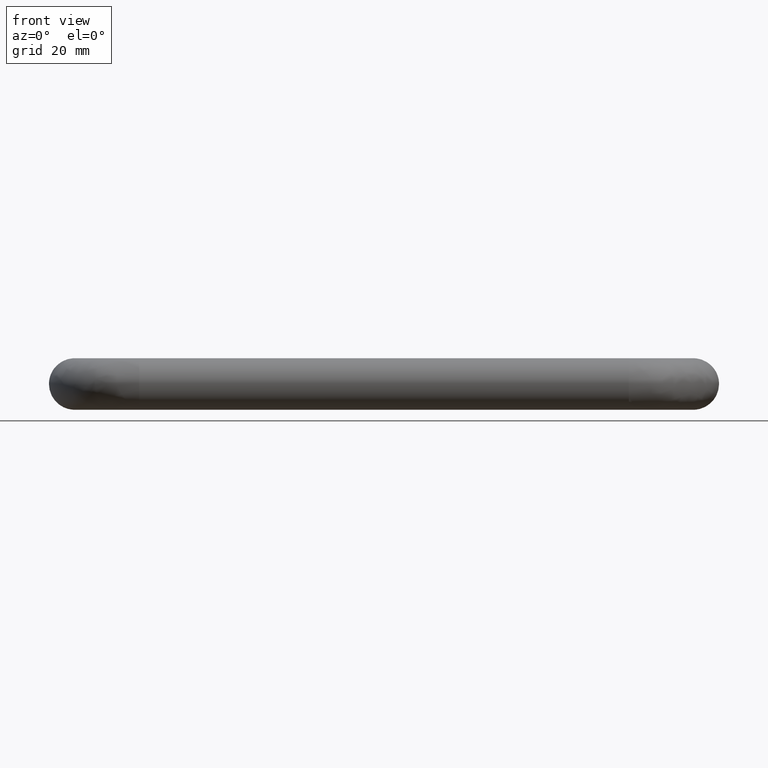
[diagram: clean part render]
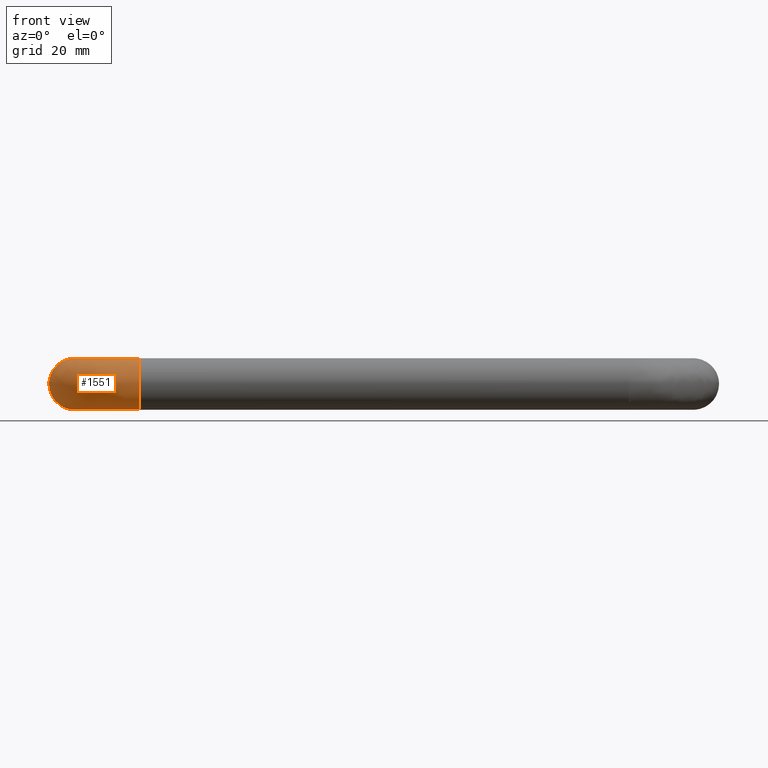
[diagram: same view with one face highlighted and labeled with its STEP entity id]
A machine part, front view. The second image highlights one B-rep face of the part: STEP entity #1551.
In plain terms, the highlighted face is a freeform B-spline surface patch.
Its self-contained STEP definition (entity closure, byte-faithful):
#976=CARTESIAN_POINT('',(12.499999999521330,-34.937169799960493,4.999605221011253));
#977=VERTEX_POINT('',#976);
#991=CARTESIAN_POINT('',(12.500000000000000,-40.0,0.0));
#992=VERTEX_POINT('',#991);
#993=CARTESIAN_POINT('',(12.499999999521329,-34.937169799960486,4.999605221011254));
#994=CARTESIAN_POINT('',(12.500000000000002,-34.968583659417725,5.0));
#995=CARTESIAN_POINT('',(12.500000000000000,-35.0,5.0));
#996=CARTESIAN_POINT('',(12.500000000000000,-39.999999999999993,5.000000000000001));
#997=CARTESIAN_POINT('',(12.500000000000000,-40.0,0.0));
#1005=(BOUNDED_CURVE()B_SPLINE_CURVE(2,(#993,#994,#995,#996,#997),.UNSPECIFIED.,.F.,.U.)B_SPLINE_CURVE_WITH_KNOTS((3,2,3),(0.747784295877917,0.750000000000000,1.0),.UNSPECIFIED.)CURVE()GEOMETRIC_REPRESENTATION_ITEM()RATIONAL_B_SPLINE_CURVE((0.994854295543175,0.997404141150979,1.0,0.707106781186548,1.0))REPRESENTATION_ITEM(''));
#1006=EDGE_CURVE('',#977,#992,#1005,.T.);
#1008=CARTESIAN_POINT('',(12.499999942683930,-35.348666308206170,-4.987828365683995));
#1009=VERTEX_POINT('',#1008);
#1010=CARTESIAN_POINT('',(12.500000000000000,-40.0,0.0));
#1011=CARTESIAN_POINT('',(12.500000000000000,-40.0,-4.662684142007196));
#1012=CARTESIAN_POINT('',(12.499999942683930,-35.348666308206170,-4.987828365683995));
#1020=(BOUNDED_CURVE()B_SPLINE_CURVE(2,(#1010,#1011,#1012),.UNSPECIFIED.,.F.,.U.)B_SPLINE_CURVE_WITH_KNOTS((3,3),(0.0,0.237833683064406),.UNSPECIFIED.)CURVE()GEOMETRIC_REPRESENTATION_ITEM()RATIONAL_B_SPLINE_CURVE((1.0,0.721360508100031,0.972879869046176))REPRESENTATION_ITEM(''));
#1021=EDGE_CURVE('',#992,#1009,#1020,.T.);
#1287=CARTESIAN_POINT('',(-0.348666262534672,-22.500000001229829,-4.987828368876588));
#1288=VERTEX_POINT('',#1287);
#1304=CARTESIAN_POINT('',(-4.999999999999997,-22.500000000000000,0.0));
#1305=VERTEX_POINT('',#1304);
#1306=CARTESIAN_POINT('',(-4.999999999999997,-22.500000000000000,0.0));
#1307=CARTESIAN_POINT('',(-4.999999999999997,-22.499999999999996,-4.662684227604138));
#1308=CARTESIAN_POINT('',(-0.348666262534672,-22.500000001229818,-4.987828368876588));
#1316=(BOUNDED_CURVE()B_SPLINE_CURVE(2,(#1306,#1307,#1308),.UNSPECIFIED.,.F.,.U.)B_SPLINE_CURVE_WITH_KNOTS((3,3),(0.0,0.237833686213952),.UNSPECIFIED.)CURVE()GEOMETRIC_REPRESENTATION_ITEM()RATIONAL_B_SPLINE_CURVE((1.0,0.721360504410108,0.972879875707737))REPRESENTATION_ITEM(''));
#1317=EDGE_CURVE('',#1305,#1288,#1316,.T.);
#1319=CARTESIAN_POINT('',(0.062830201473882,-22.500000001219831,4.999605220993228));
#1320=VERTEX_POINT('',#1319);
#1321=CARTESIAN_POINT('',(0.062830201473882,-22.500000001219831,4.999605220993228));
#1322=CARTESIAN_POINT('',(0.031416342016811,-22.499999999999996,5.0));
#1323=CARTESIAN_POINT('',(2.755364E-015,-22.500000000000000,5.0));
#1324=CARTESIAN_POINT('',(-4.999999999999997,-22.500000000000000,5.000000000000001));
#1325=CARTESIAN_POINT('',(-4.999999999999997,-22.500000000000000,0.0));
#1333=(BOUNDED_CURVE()B_SPLINE_CURVE(2,(#1321,#1322,#1323,#1324,#1325),.UNSPECIFIED.,.F.,.U.)B_SPLINE_CURVE_WITH_KNOTS((3,2,3),(0.747784295777005,0.750000000000000,1.0),.UNSPECIFIED.)CURVE()GEOMETRIC_REPRESENTATION_ITEM()RATIONAL_B_SPLINE_CURVE((0.994854295310916,0.997404141032754,1.0,0.707106781186548,1.0))REPRESENTATION_ITEM(''));
#1334=EDGE_CURVE('',#1320,#1305,#1333,.T.);
#1490=CARTESIAN_POINT('',(-0.246043949258327,-21.616309953103229,-4.992863210513725));
#1491=CARTESIAN_POINT('',(-1.262163877998453,-36.272477367141803,-4.992863210513724));
#1492=CARTESIAN_POINT('',(13.393238219508005,-35.245378375655214,-4.992863210513724));
#1493=CARTESIAN_POINT('',(-0.281871426032919,-21.613826014968602,-4.990352735467731));
#1494=CARTESIAN_POINT('',(-1.300847536133477,-36.311190015157472,-4.990352735467730));
#1495=CARTESIAN_POINT('',(13.395748996317737,-35.281203981588710,-4.990352735467731));
#1496=CARTESIAN_POINT('',(-5.016890184537566,-21.285544630923653,-4.658564189198486));
#1497=CARTESIAN_POINT('',(-6.413343960855873,-41.427517790591814,-4.658564189198486));
#1498=CARTESIAN_POINT('',(13.727577424182968,-40.015975486631149,-4.658564189198487));
#1499=CARTESIAN_POINT('',(-4.957698358406729,-21.289648431900471,0.062830199416762));
#1500=CARTESIAN_POINT('',(-6.349433337709312,-41.363559272250576,0.062830199416762));
#1501=CARTESIAN_POINT('',(13.723429282093315,-39.956786751382239,0.062830199416762));
#1502=CARTESIAN_POINT('',(-4.895018620471904,-21.293994051668907,5.062435420435840));
#1503=CARTESIAN_POINT('',(-6.281756744978027,-41.295831962073215,5.062435420435841));
#1504=CARTESIAN_POINT('',(13.719036708386920,-39.894110286461306,5.062435420435841));
#1505=CARTESIAN_POINT('',(0.127900431983083,-21.642235717137265,4.999160709382378));
#1506=CARTESIAN_POINT('',(-0.858408495042908,-35.868419406278036,4.999160709382379));
#1507=CARTESIAN_POINT('',(13.367032330478839,-34.871453521061454,4.999160709382377));
#1508=CARTESIAN_POINT('',(0.162980768599282,-21.644667855644936,4.998718795399718));
#1509=CARTESIAN_POINT('',(-0.820531539390674,-35.830514065295255,4.998718795399716));
#1510=CARTESIAN_POINT('',(13.364573912985259,-34.836375016272143,4.998718795399718));
#1518=(BOUNDED_SURFACE()B_SPLINE_SURFACE(2,2,((#1490,#1493,#1496,#1499,#1502,#1505,#1508),(#1491,#1494,#1497,#1500,#1503,#1506,#1509),(#1492,#1495,#1498,#1501,#1504,#1507,#1510)),.UNSPECIFIED.,.F.,.F.,.U.)B_SPLINE_SURFACE_WITH_KNOTS((3,3),(3,1,2,1,3),(0.0,31.890571891225530),(0.0,0.083144012797420,8.036044410360839,16.320315657822729,16.403445808023800),.UNSPECIFIED.)GEOMETRIC_REPRESENTATION_ITEM()RATIONAL_B_SPLINE_SURFACE(((0.905744013994426,0.903251925356143,0.662386295974072,0.921487970695580,0.651590392860676,0.924196311056984,0.926904651418389),(0.591078773956204,0.589452463791138,0.432266152092013,0.601353110281207,0.425220862167464,0.603120543988238,0.604887977695268),(0.895737609904557,0.893273053157798,0.655068439230114,0.911307631818076,0.644391806205615,0.913986051199987,0.916664470581897)))REPRESENTATION_ITEM('')SURFACE());
#1519=ORIENTED_EDGE('',*,*,#1021,.F.);
#1520=ORIENTED_EDGE('',*,*,#1006,.F.);
#1521=CARTESIAN_POINT('',(0.062830201473882,-22.500000001219835,4.999605220993228));
#1522=CARTESIAN_POINT('',(0.062830201856423,-34.937169799625885,4.999605221019079));
#1523=CARTESIAN_POINT('',(12.499999999521334,-34.937169799960486,4.999605221011254));
#1531=(BOUNDED_CURVE()B_SPLINE_CURVE(2,(#1521,#1522,#1523),.UNSPECIFIED.,.F.,.U.)B_SPLINE_CURVE_WITH_KNOTS((3,3),(-1.747842683464338,-0.278273131025898),.UNSPECIFIED.)CURVE()GEOMETRIC_REPRESENTATION_ITEM()RATIONAL_B_SPLINE_CURVE((0.893710737890176,0.628668022939517,0.884455039427532))REPRESENTATION_ITEM(''));
#1532=EDGE_CURVE('',#1320,#977,#1531,.T.);
#1533=ORIENTED_EDGE('',*,*,#1532,.F.);
#1534=ORIENTED_EDGE('',*,*,#1334,.T.);
#1535=ORIENTED_EDGE('',*,*,#1317,.T.);
#1536=CARTESIAN_POINT('',(-0.348666262534672,-22.500000001229818,-4.987828368876588));
#1537=CARTESIAN_POINT('',(-0.348666255417557,-35.348666143245083,-4.987828369202160));
#1538=CARTESIAN_POINT('',(12.499999942683937,-35.348666308206177,-4.987828365683996));
#1546=(BOUNDED_CURVE()B_SPLINE_CURVE(2,(#1536,#1537,#1538),.UNSPECIFIED.,.F.,.U.)B_SPLINE_CURVE_WITH_KNOTS((3,3),(-1.747842683469275,-0.278273140169127),.UNSPECIFIED.)CURVE()GEOMETRIC_REPRESENTATION_ITEM()RATIONAL_B_SPLINE_CURVE((0.873607430522281,0.614526640808866,0.864559928471628))REPRESENTATION_ITEM(''));
#1547=EDGE_CURVE('',#1288,#1009,#1546,.T.);
#1548=ORIENTED_EDGE('',*,*,#1547,.T.);
#1549=EDGE_LOOP('',(#1519,#1520,#1533,#1534,#1535,#1548));
#1550=FACE_OUTER_BOUND('',#1549,.T.);
#1551=ADVANCED_FACE('',(#1550),#1518,.T.);